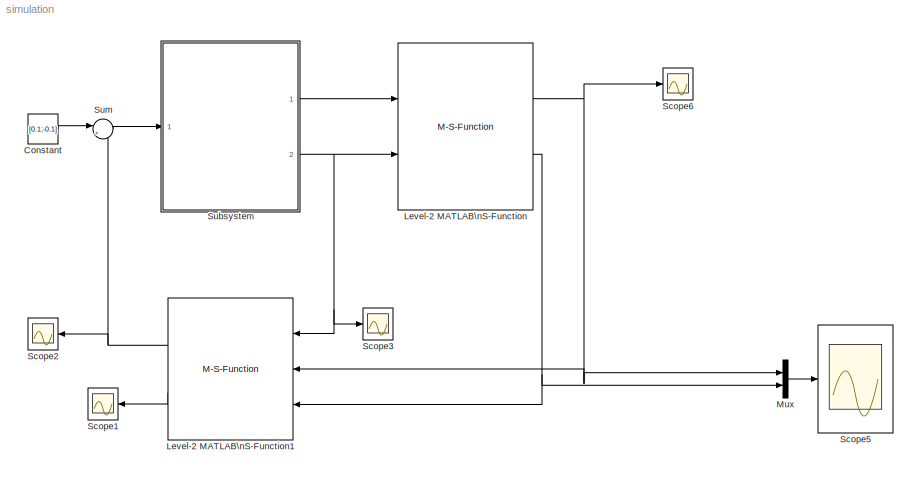
MODEL simulation
KIND model
BLOCK [Constant] Constant
  SID = 17
  Value = [0.1;-0.1]
BLOCK [M-S-Function] Level-2 MATLAB\nS-Function
  FunctionName = VirtualEnvironment
  Parameters = kWall, bWall, nWall, pWall, mu, dof, tsampling
  Ports = [2, 2]
  SID = 16
BLOCK [M-S-Function] Level-2 MATLAB\nS-Function1
  FunctionName = Controller1
  Parameters = bDevice, dof, tsampling, p0, pWall, nWall
  Ports = [3, 2]
  SID = 21
BLOCK [Mux] Mux
  DisplayOption = bar
  Inputs = 2
  Ports = [2, 1]
  SID = 27
BLOCK [Scope] Scope1
  Ports = [1]
  SID = 22
  ScopeSpecificationString = Simulink.scopes.TimeScopeBlockCfg('CurrentConfiguration', extmgr.ConfigurationSet(extmgr.Configuration('Core','General UI',true),extmgr.Configuration('Core','Source UI',true),extmgr.Configuration('Sources','WiredSimulink',true,'DataLoggingVariableName','ScopeData1'),extmgr.Configuration('Visuals','Time Domain',true,'SerializedDisplays',{struct('MinYLimReal','-0.00406','MaxYLimReal','0.03654','YLab...<+1485ch>
BLOCK [Scope] Scope2
  Ports = [1]
  SID = 23
  ScopeSpecificationString = Simulink.scopes.TimeScopeBlockCfg('CurrentConfiguration', extmgr.ConfigurationSet(extmgr.Configuration('Core','General UI',true),extmgr.Configuration('Core','Source UI',true),extmgr.Configuration('Sources','WiredSimulink',true,'DataLoggingVariableName','ScopeData2'),extmgr.Configuration('Visuals','Time Domain',true,'SerializedDisplays',{struct('MinYLimReal','2.96416','MaxYLimReal','3.1553','YLabel...<+1516ch>
BLOCK [Scope] Scope3
  Ports = [1]
  SID = 31
  ScopeSpecificationString = Simulink.scopes.TimeScopeBlockCfg('CurrentConfiguration', extmgr.ConfigurationSet(extmgr.Configuration('Core','General UI',true),extmgr.Configuration('Core','Source UI',true),extmgr.Configuration('Sources','WiredSimulink',true,'DataLoggingVariableName','ScopeData2'),extmgr.Configuration('Visuals','Time Domain',true,'SerializedDisplays',{struct('MinYLimReal','-0.19343','MaxYLimReal','0.60895','YLab...<+1487ch>
BLOCK [Scope] Scope5
  Ports = [1]
  SID = 26
  ScopeSpecificationString = Simulink.scopes.TimeScopeBlockCfg('CurrentConfiguration', extmgr.ConfigurationSet(extmgr.Configuration('Core','General UI',true),extmgr.Configuration('Core','Source UI',true),extmgr.Configuration('Sources','WiredSimulink',true,'DataLoggingVariableName','ScopeData2'),extmgr.Configuration('Visuals','Time Domain',true,'SerializedDisplays',{struct('MinYLimReal','-23.52478','MaxYLimReal','112.69347','Y...<+1594ch>
BLOCK [Scope] Scope6
  Ports = [1]
  SID = 28
  ScopeSpecificationString = Simulink.scopes.TimeScopeBlockCfg('CurrentConfiguration', extmgr.ConfigurationSet(extmgr.Configuration('Core','General UI',true),extmgr.Configuration('Core','Source UI',true),extmgr.Configuration('Sources','WiredSimulink',true,'DataLoggingVariableName','ScopeData1'),extmgr.Configuration('Visuals','Time Domain',true,'SerializedDisplays',{struct('MinYLimReal','-12.49099','MaxYLimReal','112.41893','Y...<+1874ch>
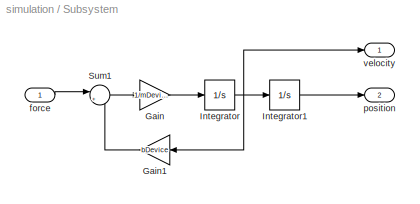
BLOCK [SubSystem] Subsystem
  Ports = [1, 2]
  RequestExecContextInheritance = off
  SID = 11
  Variant = off
BLOCK [Gain] Subsystem/Gain
  Gain = 1/mDevice
  OutDataTypeStr = Inherit: Inherit via internal rule
  ParamDataTypeStr = Inherit: Inherit via internal rule
  SID = 3
  SaturateOnIntegerOverflow = off
BLOCK [Gain] Subsystem/Gain1
  Gain = bDevice
  OutDataTypeStr = Inherit: Inherit via internal rule
  ParamDataTypeStr = Inherit: Inherit via internal rule
  SID = 8
  SaturateOnIntegerOverflow = off
BLOCK [Integrator] Subsystem/Integrator
  InitialCondition = v0
  Ports = [1, 1]
  SID = 4
BLOCK [Integrator] Subsystem/Integrator1
  InitialCondition = p0
  Ports = [1, 1]
  SID = 6
BLOCK [Sum] Subsystem/Sum1
  IconShape = round
  InputSameDT = off
  Inputs = |+-
  OutDataTypeStr = Inherit: Inherit via internal rule
  Ports = [2, 1]
  SID = 9
  SaturateOnIntegerOverflow = off
BLOCK [Inport] Subsystem/force
  IconDisplay = Port number
  SID = 12
BLOCK [Outport] Subsystem/position
  IconDisplay = Port number
  Port = 2
  SID = 14
BLOCK [Outport] Subsystem/velocity
  IconDisplay = Port number
  SID = 13
BLOCK [Sum] Sum
  IconShape = round
  InputSameDT = off
  Inputs = |++
  OutDataTypeStr = Inherit: Inherit via internal rule
  Ports = [2, 1]
  SID = 5
  SaturateOnIntegerOverflow = off
LINE Constant:1 -> Sum:1
NET Level-2 MATLAB\nS-Function1:1 -> Scope2:1, Sum:2
LINE Level-2 MATLAB\nS-Function1:2 -> Scope1:1
NET Level-2 MATLAB\nS-Function:1 -> Level-2 MATLAB\nS-Function1:2, Mux:1, Scope6:1
NET Level-2 MATLAB\nS-Function:2 -> Level-2 MATLAB\nS-Function1:3, Mux:2
LINE Mux:1 -> Scope5:1
LINE Subsystem/Gain1:1 -> Subsystem/Sum1:2
LINE Subsystem/Gain:1 -> Subsystem/Integrator:1
LINE Subsystem/Integrator1:1 -> Subsystem/position:1
NET Subsystem/Integrator:1 -> Subsystem/Gain1:1, Subsystem/Integrator1:1, Subsystem/velocity:1
LINE Subsystem/Sum1:1 -> Subsystem/Gain:1
LINE Subsystem/force:1 -> Subsystem/Sum1:1
LINE Subsystem:1 -> Level-2 MATLAB\nS-Function:1
NET Subsystem:2 -> Level-2 MATLAB\nS-Function1:1, Level-2 MATLAB\nS-Function:2, Scope3:1
LINE Sum:1 -> Subsystem:1
note: NET lines group one-source signal fan-out (src -> all destinations, sorted); 1:1 wires keep LINE
